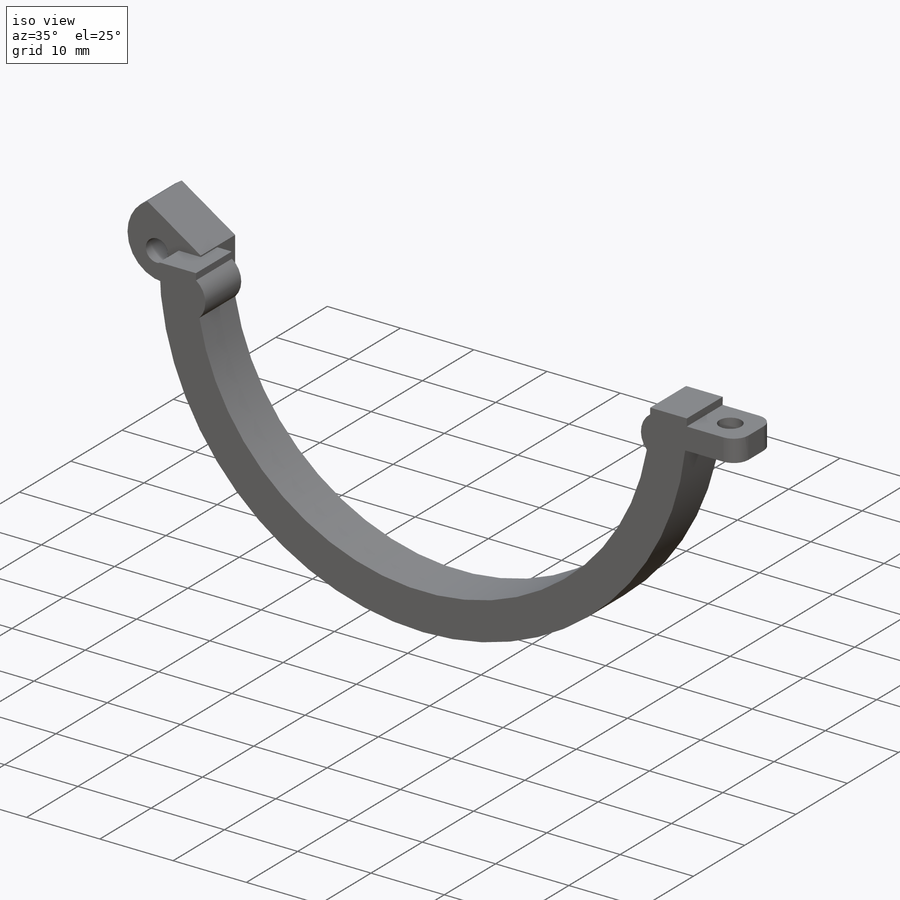
[diagram: iso view]
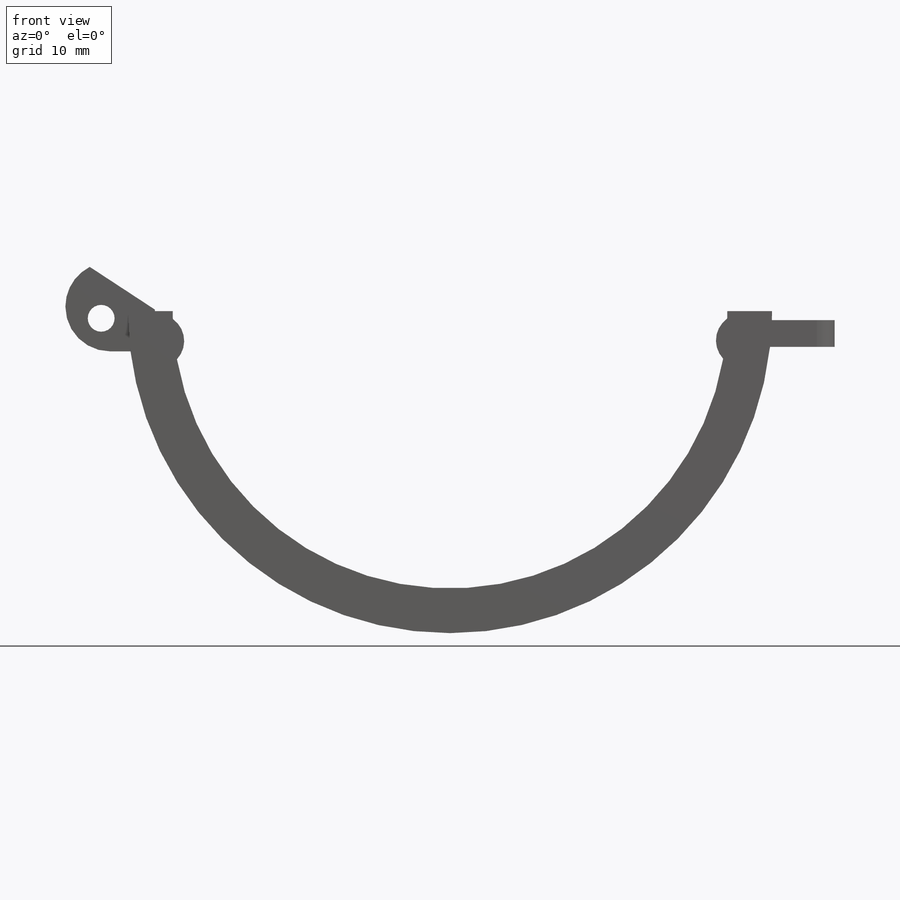
[diagram: front view]
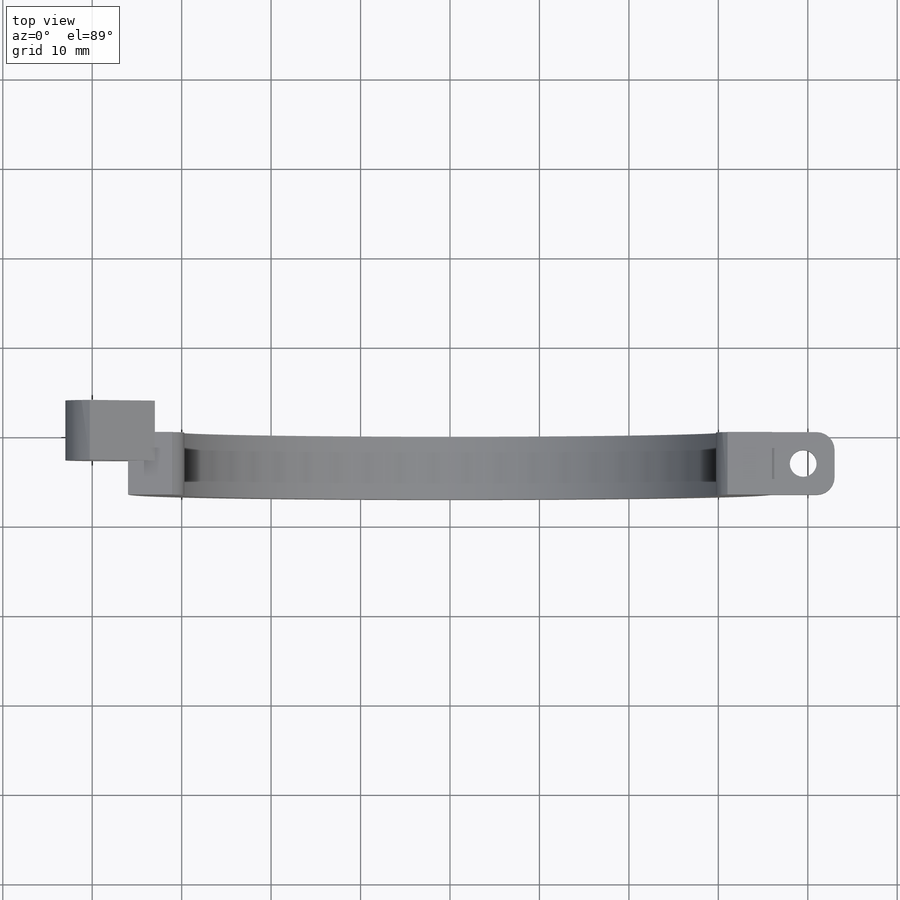
[diagram: top view]
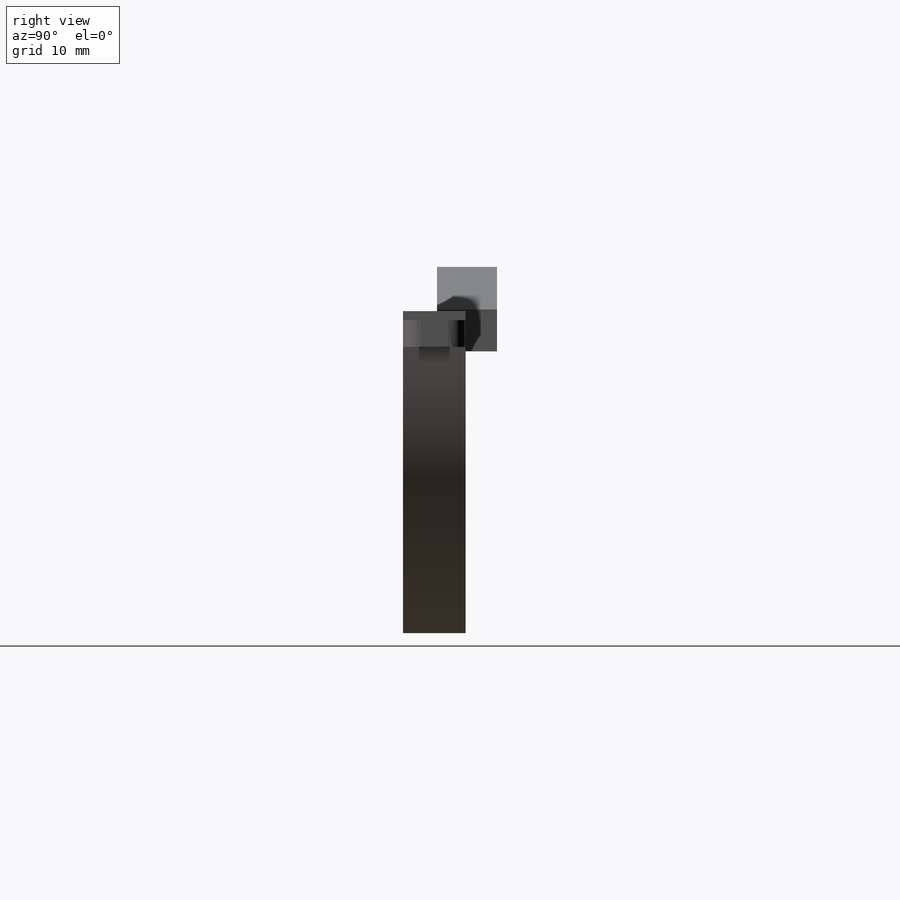
[diagram: right view]
SOLIDWORKS PART (.sldprt)
format: sldprt  version: not decoded by parser v0  size: 276,480 bytes
history: native  units: mm
features: sketch x6, fillet x5, extrude x3, cut_extrude x3, material x1 (+13 scaffold rows collapsed)
feature tree (31):
  scaffold x13  (default folders/planes/origin — collapsed)
  material  "Material <not specified>"
  sketch  "Sketch1"  dims[c1.D2=62.0mm c1.D3=~113.874241mm c1.D4=72.0mm c1.D8=6.0mm c1.D9=6.0mm c1.D1=0.0mm c2.D3=0.0mm c2.D5=35.5mm c2.D6=36.0mm c2.D7=0.0mm c3.D5=36.0mm c3.D9=~32.055861mm c3.D10=36.0mm c3.D11=36.0mm c3.D12=30.0mm c3.D13=~51.078212mm c4.D13=90.0deg c4.D14=40.0mm]
  extrude  "Boss-Extrude2"  Depth=7mm
  sketch  "Sketch7"  dims[D1=10.0mm D2=10.0mm D3=5.5mm D4=2.0mm]
  extrude  "Boss-Extrude7"  Depth=3.2mm
  sketch  "Sketch8"  dims[c1.D1=3.0mm c1.D2=3.0mm c1.D3=3.0mm c2.D2=4.0mm c2.D3=3.7mm]
  cut_extrude  "Cut-Extrude3"  Depth=10mm
  fillet  "Fillet1"  Radius=5mm
  fillet  "Fillet2"  Radius=5mm
  fillet  "Fillet3"  Radius=5mm
  sketch  "Sketch9"  dims[D1=4.0mm D2=3.0mm D3=8.0mm D4=1.0mm]
  extrude  "Boss-Extrude8"  Depth=7mm
  sketch  "Sketch10"  dims[c1.D1=3.0mm c1.D2=3.0mm c1.D3=3.0mm c2.D2=3.5mm c2.D3=3.5mm]
  cut_extrude  "Cut-Extrude4"  Depth=10mm
  fillet  "Fillet4"  Radius=2mm
  fillet  "Fillet5"  Radius=2mm
  sketch  "Sketch11"  dims[D1=0.0mm D2=0.0mm D3=5.0mm]
  cut_extrude  "Cut-Extrude5"  Depth=7mm
decode coverage: 17 of 17 modeling features carry decoded parameters
note: ~ marks probable driven/reference dimensions
note: suppression state not decoded; provenance and decode notes live in map.json
